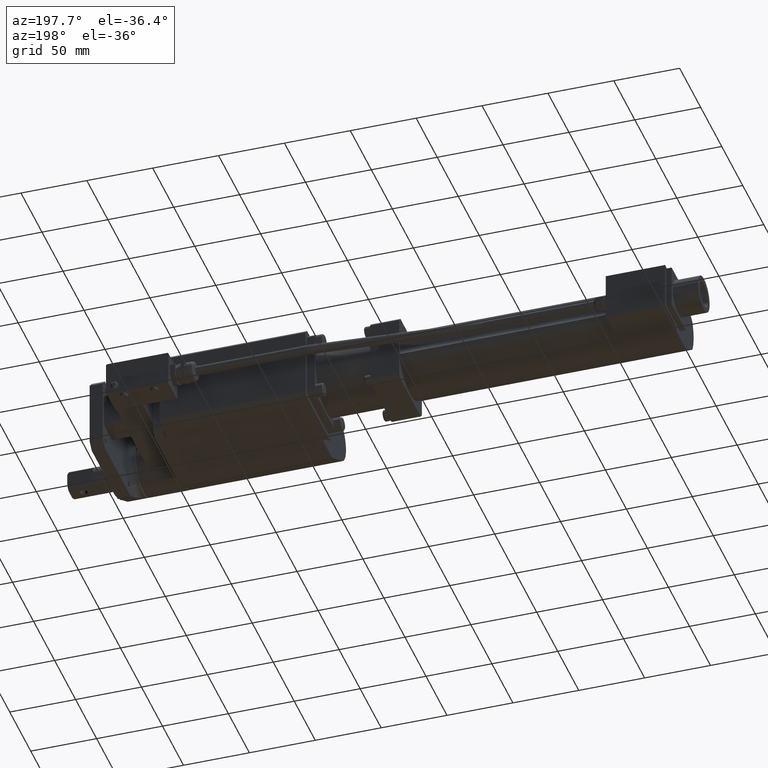
[diagram: clean part render]
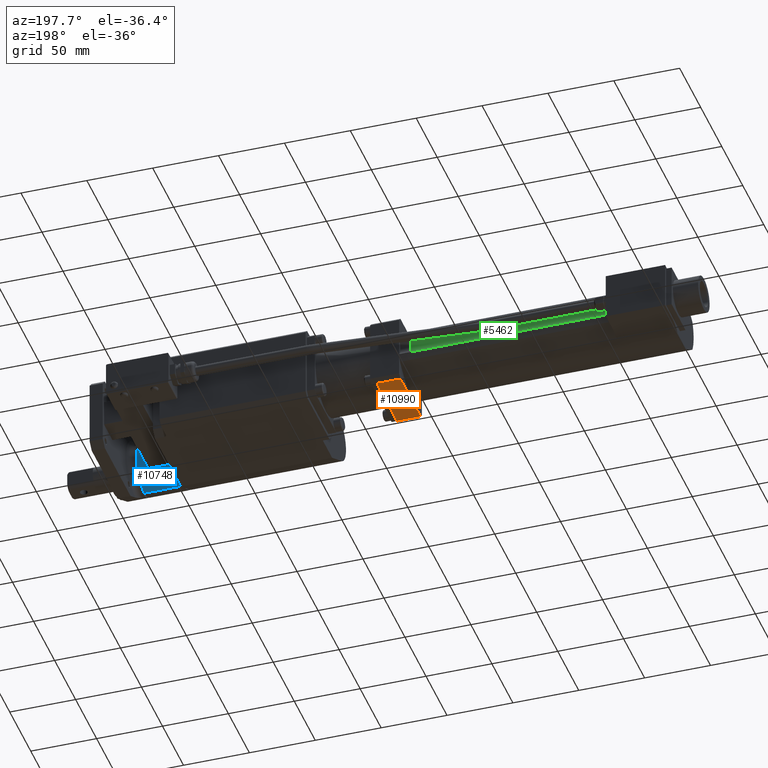
[diagram: same view with three faces highlighted in distinct colors, each labeled with its STEP entity id]
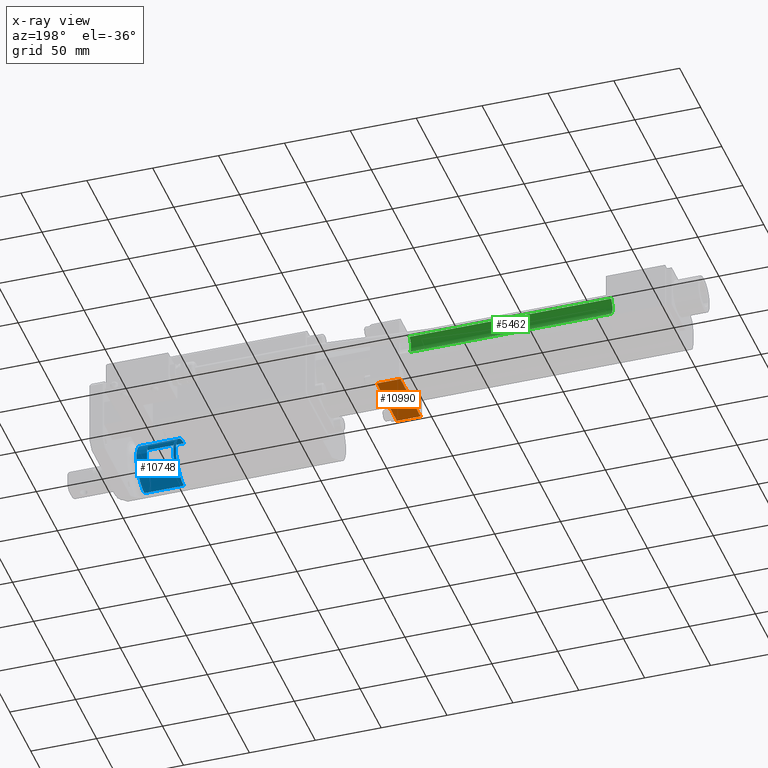
[diagram: x-ray of the same camera — body ghosted, the three highlighted faces saturated]
A machine part, auxiliary view with three faces highlighted in distinct colors.
The next image is the same camera in x-ray (body ghosted, the three faces saturated) — at least one of them is partly hidden behind the body in this view.
Their STEP definitions:

[orange] entity #10990 — the highlighted planar face has unit normal (0, 0, 1).
#1211 = VECTOR ( 'NONE', #4658, 1000.000000000000000 ) ;
#2014 = EDGE_CURVE ( 'NONE', #2995, #2384, #11399, .T. ) ;
#2384 = VERTEX_POINT ( 'NONE', #4570 ) ;
#2995 = VERTEX_POINT ( 'NONE', #7580 ) ;
#3093 = VECTOR ( 'NONE', #9268, 1000.000000000000000 ) ;
#3367 = VERTEX_POINT ( 'NONE', #11513 ) ;
#4504 = VECTOR ( 'NONE', #8648, 1000.000000000000000 ) ;
#4570 = CARTESIAN_POINT ( 'NONE',  ( -220.0000000000000300, 86.59000000000000300, -27.00000000000000000 ) ) ;
#4658 = DIRECTION ( 'NONE',  ( 0.0000000000000000000, -1.000000000000000000, 6.424901762877063500E-017 ) ) ;
#5065 = ORIENTED_EDGE ( 'NONE', *, *, #5156, .T. ) ;
#5156 = EDGE_CURVE ( 'NONE', #2384, #8354, #12025, .T. ) ;
#5640 = DIRECTION ( 'NONE',  ( -1.000000000000000000, 0.0000000000000000000, 0.0000000000000000000 ) ) ;
#6031 = CARTESIAN_POINT ( 'NONE',  ( -238.0000000000000300, 89.59000000000000300, -27.00000000000000000 ) ) ;
#6158 = DIRECTION ( 'NONE',  ( 0.0000000000000000000, -1.000000000000000000, 6.424901762877063500E-017 ) ) ;
#6543 = ORIENTED_EDGE ( 'NONE', *, *, #11584, .T. ) ;
#7026 = CARTESIAN_POINT ( 'NONE',  ( -238.0000000000000300, 38.59000000000000300, -26.99999999999999600 ) ) ;
#7418 = LINE ( 'NONE', #6031, #1211 ) ;
#7540 = DIRECTION ( 'NONE',  ( 0.0000000000000000000, 6.424901762877063500E-017, 1.000000000000000000 ) ) ;
#7580 = CARTESIAN_POINT ( 'NONE',  ( -238.0000000000000300, 86.59000000000000300, -27.00000000000000000 ) ) ;
#7903 = VECTOR ( 'NONE', #5640, 1000.000000000000000 ) ;
#8354 = VERTEX_POINT ( 'NONE', #8783 ) ;
#8406 = LINE ( 'NONE', #7026, #7903 ) ;
#8648 = DIRECTION ( 'NONE',  ( 1.000000000000000000, 0.0000000000000000000, 0.0000000000000000000 ) ) ;
#8783 = CARTESIAN_POINT ( 'NONE',  ( -220.0000000000000300, 38.59000000000000300, -26.99999999999999600 ) ) ;
#8934 = CARTESIAN_POINT ( 'NONE',  ( -238.0000000000000300, 89.59000000000000300, -27.00000000000000000 ) ) ;
#9268 = DIRECTION ( 'NONE',  ( 0.0000000000000000000, -1.000000000000000000, 6.424901762877063500E-017 ) ) ;
#10029 = CARTESIAN_POINT ( 'NONE',  ( -238.0000000000000300, 86.59000000000000300, -27.00000000000000000 ) ) ;
#10137 = EDGE_LOOP ( 'NONE', ( #5065, #6543, #11939, #12474 ) ) ;
#10292 = PLANE ( 'NONE',  #12290 ) ;
#10619 = CARTESIAN_POINT ( 'NONE',  ( -220.0000000000000300, 89.59000000000000300, -27.00000000000000000 ) ) ;
#10990 = ADVANCED_FACE ( 'NONE', ( #11587 ), #10292, .F. ) ;
#11399 = LINE ( 'NONE', #10029, #4504 ) ;
#11513 = CARTESIAN_POINT ( 'NONE',  ( -238.0000000000000300, 38.59000000000001100, -27.00000000000000000 ) ) ;
#11584 = EDGE_CURVE ( 'NONE', #8354, #3367, #8406, .T. ) ;
#11587 = FACE_OUTER_BOUND ( 'NONE', #10137, .T. ) ;
#11939 = ORIENTED_EDGE ( 'NONE', *, *, #12681, .F. ) ;
#12025 = LINE ( 'NONE', #10619, #3093 ) ;
#12290 = AXIS2_PLACEMENT_3D ( 'NONE', #8934, #7540, #6158 ) ;
#12474 = ORIENTED_EDGE ( 'NONE', *, *, #2014, .T. ) ;
#12681 = EDGE_CURVE ( 'NONE', #2995, #3367, #7418, .T. ) ;

[blue] entity #10748 — the highlighted cylindrical surface (edge-blend (fillet) strip) has radius 19 mm, axis along (1, -0, -0).
#3 = CARTESIAN_POINT ( 'NONE',  ( -16.00000000000000000, 0.0000000000000000000, -19.00000000000000400 ) ) ;
#26 = DIRECTION ( 'NONE',  ( -1.000000000000000000, 0.0000000000000000000, 0.0000000000000000000 ) ) ;
#487 = ORIENTED_EDGE ( 'NONE', *, *, #1297, .F. ) ;
#706 = DIRECTION ( 'NONE',  ( -1.000000000000000000, 0.0000000000000000000, 0.0000000000000000000 ) ) ;
#896 = EDGE_LOOP ( 'NONE', ( #487, #8735, #5117, #9160 ) ) ;
#985 = AXIS2_PLACEMENT_3D ( 'NONE', #3222, #9781, #8402 ) ;
#1065 = CARTESIAN_POINT ( 'NONE',  ( -46.00000000000000000, 2.326828918379971400E-015, 19.00000000000000400 ) ) ;
#1297 = EDGE_CURVE ( 'NONE', #3853, #10048, #8661, .T. ) ;
#1397 = CARTESIAN_POINT ( 'NONE',  ( -46.00000000000000000, 0.0000000000000000000, 0.0000000000000000000 ) ) ;
#1507 = VERTEX_POINT ( 'NONE', #8202 ) ;
#1594 = EDGE_CURVE ( 'NONE', #11733, #1507, #5835, .T. ) ;
#1743 = CIRCLE ( 'NONE', #8858, 19.00000000000000400 ) ;
#1805 = ORIENTED_EDGE ( 'NONE', *, *, #1594, .T. ) ;
#2001 = CARTESIAN_POINT ( 'NONE',  ( -24.00000000000000000, 16.15549442140351400, 9.999999999999996400 ) ) ;
#2081 = CARTESIAN_POINT ( 'NONE',  ( -46.00000000000000000, 16.15549442140351700, -10.00000000000000000 ) ) ;
#2214 = CARTESIAN_POINT ( 'NONE',  ( -46.00000000000000000, 0.0000000000000000000, -19.00000000000000400 ) ) ;
#2446 = DIRECTION ( 'NONE',  ( 0.0000000000000000000, 1.000000000000000000, 0.0000000000000000000 ) ) ;
#2452 = DIRECTION ( 'NONE',  ( 0.0000000000000000000, 0.0000000000000000000, -1.000000000000000000 ) ) ;
#2485 = VECTOR ( 'NONE', #9601, 1000.000000000000000 ) ;
#2722 = VECTOR ( 'NONE', #8438, 1000.000000000000000 ) ;
#2833 = EDGE_LOOP ( 'NONE', ( #11825, #1805, #6465, #4019 ) ) ;
#2855 = AXIS2_PLACEMENT_3D ( 'NONE', #5189, #3818, #2446 ) ;
#3090 = DIRECTION ( 'NONE',  ( -1.000000000000000000, 0.0000000000000000000, 0.0000000000000000000 ) ) ;
#3222 = CARTESIAN_POINT ( 'NONE',  ( -24.00000000000000000, 0.0000000000000000000, 0.0000000000000000000 ) ) ;
#3455 = LINE ( 'NONE', #2081, #4976 ) ;
#3818 = DIRECTION ( 'NONE',  ( 1.000000000000000000, 1.460819769243627100E-016, -0.0000000000000000000 ) ) ;
#3824 = DIRECTION ( 'NONE',  ( 1.000000000000000000, -0.0000000000000000000, -0.0000000000000000000 ) ) ;
#3853 = VERTEX_POINT ( 'NONE', #1065 ) ;
#3960 = CARTESIAN_POINT ( 'NONE',  ( -16.00000000000000000, 2.326828918379971400E-015, 19.00000000000000400 ) ) ;
#4019 = ORIENTED_EDGE ( 'NONE', *, *, #4606, .F. ) ;
#4079 = DIRECTION ( 'NONE',  ( 0.0000000000000000000, 0.0000000000000000000, 1.000000000000000000 ) ) ;
#4368 = AXIS2_PLACEMENT_3D ( 'NONE', #5194, #3824, #2452 ) ;
#4450 = CARTESIAN_POINT ( 'NONE',  ( -46.00000000000000000, 16.15549442140351700, 10.00000000000000000 ) ) ;
#4606 = EDGE_CURVE ( 'NONE', #7971, #10037, #3455, .T. ) ;
#4969 = CARTESIAN_POINT ( 'NONE',  ( -43.99999999999998600, 16.15549442140351700, -10.00000000000000000 ) ) ;
#4976 = VECTOR ( 'NONE', #706, 1000.000000000000000 ) ;
#5117 = ORIENTED_EDGE ( 'NONE', *, *, #12749, .T. ) ;
#5189 = CARTESIAN_POINT ( 'NONE',  ( -43.99999999999998600, 0.0000000000000000000, 0.0000000000000000000 ) ) ;
#5194 = CARTESIAN_POINT ( 'NONE',  ( -46.00000000000000000, 0.0000000000000000000, 0.0000000000000000000 ) ) ;
#5359 = EDGE_CURVE ( 'NONE', #10048, #9239, #12352, .T. ) ;
#5407 = FACE_OUTER_BOUND ( 'NONE', #896, .T. ) ;
#5452 = DIRECTION ( 'NONE',  ( -1.000000000000000000, 0.0000000000000000000, 0.0000000000000000000 ) ) ;
#5835 = LINE ( 'NONE', #4450, #7626 ) ;
#5874 = EDGE_CURVE ( 'NONE', #10037, #1507, #11224, .T. ) ;
#6113 = CYLINDRICAL_SURFACE ( 'NONE', #4368, 19.00000000000000400 ) ;
#6465 = ORIENTED_EDGE ( 'NONE', *, *, #5874, .F. ) ;
#6852 = CARTESIAN_POINT ( 'NONE',  ( -16.00000000000000000, 0.0000000000000000000, 0.0000000000000000000 ) ) ;
#7626 = VECTOR ( 'NONE', #3090, 1000.000000000000000 ) ;
#7971 = VERTEX_POINT ( 'NONE', #9705 ) ;
#8202 = CARTESIAN_POINT ( 'NONE',  ( -43.99999999999998600, 16.15549442140351700, 10.00000000000000000 ) ) ;
#8402 = DIRECTION ( 'NONE',  ( 0.0000000000000000000, 0.0000000000000000000, 1.000000000000000000 ) ) ;
#8438 = DIRECTION ( 'NONE',  ( 1.000000000000000000, -0.0000000000000000000, -0.0000000000000000000 ) ) ;
#8661 = CIRCLE ( 'NONE', #12301, 19.00000000000000400 ) ;
#8684 = EDGE_CURVE ( 'NONE', #3853, #11202, #11182, .T. ) ;
#8735 = ORIENTED_EDGE ( 'NONE', *, *, #8684, .T. ) ;
#8858 = AXIS2_PLACEMENT_3D ( 'NONE', #6852, #5452, #4079 ) ;
#9160 = ORIENTED_EDGE ( 'NONE', *, *, #5359, .F. ) ;
#9239 = VERTEX_POINT ( 'NONE', #3 ) ;
#9601 = DIRECTION ( 'NONE',  ( 1.000000000000000000, -0.0000000000000000000, -0.0000000000000000000 ) ) ;
#9664 = EDGE_CURVE ( 'NONE', #11733, #7971, #10688, .T. ) ;
#9705 = CARTESIAN_POINT ( 'NONE',  ( -24.00000000000000000, 16.15549442140351700, -10.00000000000000000 ) ) ;
#9781 = DIRECTION ( 'NONE',  ( -1.000000000000000000, 0.0000000000000000000, 0.0000000000000000000 ) ) ;
#9816 = CARTESIAN_POINT ( 'NONE',  ( -46.00000000000000000, 2.326828918379971400E-015, 19.00000000000000400 ) ) ;
#10037 = VERTEX_POINT ( 'NONE', #4969 ) ;
#10048 = VERTEX_POINT ( 'NONE', #2214 ) ;
#10688 = CIRCLE ( 'NONE', #985, 19.00000000000000400 ) ;
#10748 = ADVANCED_FACE ( 'NONE', ( #11938, #5407 ), #6113, .T. ) ;
#10983 = CARTESIAN_POINT ( 'NONE',  ( -46.00000000000000000, 0.0000000000000000000, -19.00000000000000400 ) ) ;
#11182 = LINE ( 'NONE', #9816, #2722 ) ;
#11202 = VERTEX_POINT ( 'NONE', #3960 ) ;
#11224 = CIRCLE ( 'NONE', #2855, 19.00000000000000400 ) ;
#11733 = VERTEX_POINT ( 'NONE', #2001 ) ;
#11825 = ORIENTED_EDGE ( 'NONE', *, *, #9664, .F. ) ;
#11938 = FACE_BOUND ( 'NONE', #2833, .T. ) ;
#12089 = DIRECTION ( 'NONE',  ( 0.0000000000000000000, 0.0000000000000000000, 1.000000000000000000 ) ) ;
#12301 = AXIS2_PLACEMENT_3D ( 'NONE', #1397, #26, #12089 ) ;
#12352 = LINE ( 'NONE', #10983, #2485 ) ;
#12749 = EDGE_CURVE ( 'NONE', #11202, #9239, #1743, .T. ) ;

[green] entity #5462 — the highlighted cylindrical surface (edge-blend (fillet) strip) has radius 9 mm, axis along (1, -0, -0).
#90 = LINE ( 'NONE', #9408, #9558 ) ;
#194 = CARTESIAN_POINT ( 'NONE',  ( -393.0000000000000000, 95.59000000000000300, 0.0000000000000000000 ) ) ;
#337 = DIRECTION ( 'NONE',  ( 1.000000000000000000, -0.0000000000000000000, -0.0000000000000000000 ) ) ;
#490 = AXIS2_PLACEMENT_3D ( 'NONE', #194, #12262, #10886 ) ;
#575 = VERTEX_POINT ( 'NONE', #11592 ) ;
#907 = ORIENTED_EDGE ( 'NONE', *, *, #8586, .T. ) ;
#1034 = CARTESIAN_POINT ( 'NONE',  ( -393.0000000000000000, 89.74151515151518800, -6.840703544010893600 ) ) ;
#1726 = CARTESIAN_POINT ( 'NONE',  ( -246.0000000000000300, 95.59000000000000300, 0.0000000000000000000 ) ) ;
#2208 = VERTEX_POINT ( 'NONE', #4411 ) ;
#2635 = EDGE_CURVE ( 'NONE', #575, #8504, #7937, .T. ) ;
#2886 = AXIS2_PLACEMENT_3D ( 'NONE', #1726, #337, #12401 ) ;
#2931 = CYLINDRICAL_SURFACE ( 'NONE', #490, 8.999999999999985800 ) ;
#3614 = FACE_OUTER_BOUND ( 'NONE', #5483, .T. ) ;
#3957 = CARTESIAN_POINT ( 'NONE',  ( -399.0000000000000000, 89.74151515151518800, 6.840703544010890100 ) ) ;
#4123 = DIRECTION ( 'NONE',  ( 0.0000000000000000000, 0.0000000000000000000, 1.000000000000000000 ) ) ;
#4411 = CARTESIAN_POINT ( 'NONE',  ( -246.0000000000000300, 89.74151515151518800, 6.840703544010890100 ) ) ;
#5340 = ORIENTED_EDGE ( 'NONE', *, *, #13335, .T. ) ;
#5462 = ADVANCED_FACE ( 'NONE', ( #3614 ), #2931, .F. ) ;
#5483 = EDGE_LOOP ( 'NONE', ( #5340, #12421, #10354, #907 ) ) ;
#5497 = DIRECTION ( 'NONE',  ( 1.000000000000000000, -0.0000000000000000000, -0.0000000000000000000 ) ) ;
#6139 = EDGE_CURVE ( 'NONE', #9106, #575, #9197, .T. ) ;
#7937 = LINE ( 'NONE', #1034, #10077 ) ;
#8043 = DIRECTION ( 'NONE',  ( 1.000000000000000000, -0.0000000000000000000, -0.0000000000000000000 ) ) ;
#8504 = VERTEX_POINT ( 'NONE', #9661 ) ;
#8586 = EDGE_CURVE ( 'NONE', #9106, #2208, #90, .T. ) ;
#9106 = VERTEX_POINT ( 'NONE', #3957 ) ;
#9197 = CIRCLE ( 'NONE', #9515, 8.999999999999985800 ) ;
#9408 = CARTESIAN_POINT ( 'NONE',  ( -393.0000000000000000, 89.74151515151518800, 6.840703544010890100 ) ) ;
#9515 = AXIS2_PLACEMENT_3D ( 'NONE', #11022, #5497, #4123 ) ;
#9558 = VECTOR ( 'NONE', #8043, 1000.000000000000000 ) ;
#9661 = CARTESIAN_POINT ( 'NONE',  ( -246.0000000000000300, 89.74151515151518800, -6.840703544010893600 ) ) ;
#10077 = VECTOR ( 'NONE', #13086, 1000.000000000000000 ) ;
#10354 = ORIENTED_EDGE ( 'NONE', *, *, #6139, .F. ) ;
#10886 = DIRECTION ( 'NONE',  ( 0.0000000000000000000, 0.0000000000000000000, -1.000000000000000000 ) ) ;
#11022 = CARTESIAN_POINT ( 'NONE',  ( -399.0000000000000000, 95.59000000000000300, 0.0000000000000000000 ) ) ;
#11104 = CIRCLE ( 'NONE', #2886, 8.999999999999985800 ) ;
#11592 = CARTESIAN_POINT ( 'NONE',  ( -399.0000000000000000, 89.74151515151518800, -6.840703544010893600 ) ) ;
#12262 = DIRECTION ( 'NONE',  ( 1.000000000000000000, -0.0000000000000000000, -0.0000000000000000000 ) ) ;
#12401 = DIRECTION ( 'NONE',  ( 0.0000000000000000000, 0.0000000000000000000, 1.000000000000000000 ) ) ;
#12421 = ORIENTED_EDGE ( 'NONE', *, *, #2635, .F. ) ;
#13086 = DIRECTION ( 'NONE',  ( 1.000000000000000000, -0.0000000000000000000, -0.0000000000000000000 ) ) ;
#13335 = EDGE_CURVE ( 'NONE', #2208, #8504, #11104, .T. ) ;